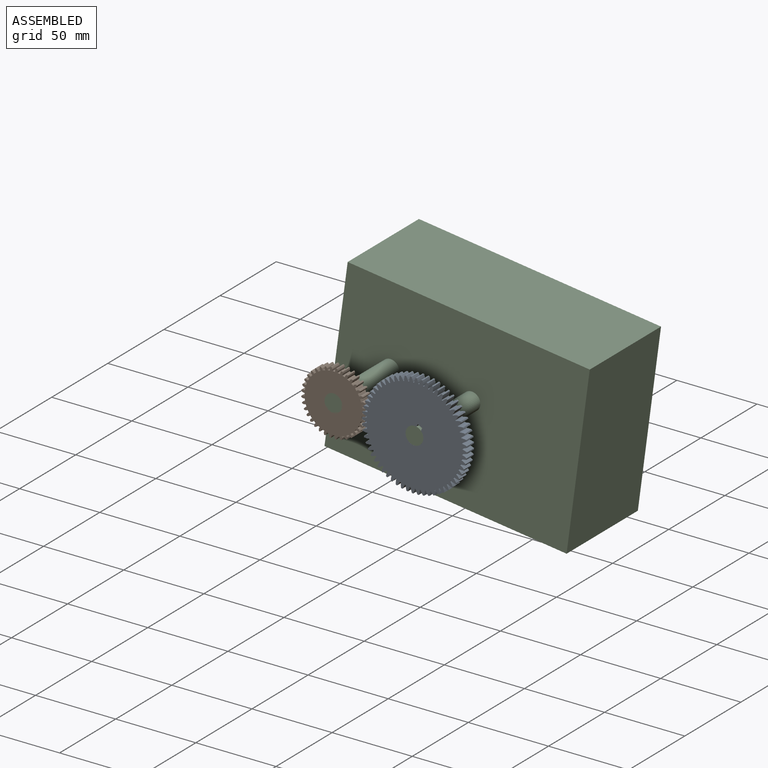
[diagram: assembled view]
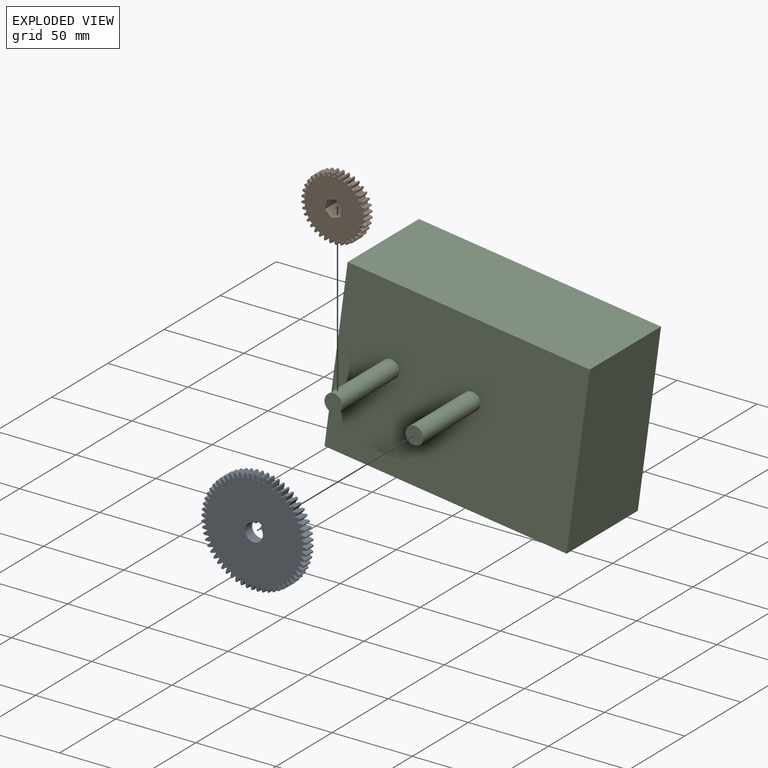
[diagram: exploded view]
GUIDED TOUR — MATED ASSEMBLY (Onshape document 88d157e55fa233e771fe9fb8, AutoMate assembly 88d157e55fa233e771fe9fb8_96536750882be23ef5b1c38d_1733c50d8d421fecbdc2144a_default)

This assembly has 3 components, labeled P0..P2 below (a component is one placed occurrence of a part; the same part can appear more than once), held together by 2 mates. A mate is a constraint between two components; its type names the relative motion it leaves free:
  REVOLUTE — leaves rotation about the listed axis free (a hinge).
Axis/direction vectors are unit vectors and 'through' points are millimeter coordinates, both in the assembly's world frame.

MATES
  1. REVOLUTE "Revolute 2": P2 <-> P0, axis (0.000, -1.000, 0.000) through (-80.83, -11.17, 45.76) mm
  2. REVOLUTE "Revolute 1": P1 <-> P2, axis (0.000, -1.000, 0.000) through (-131.41, -11.17, 50.53) mm

ASSEMBLY ORDER
  1. P2 — the base component [order verified]
  2. P1 [order verified]
  3. P0 [order verified]
Order-tag legend:
  [order verified] — this step's position reverses a verified removal order: the component was checked to insert without passing through the ones already placed.

Of the 3 components, 1 carries the full construction recipe — the FeatureScript program that regenerates the part's solid from scratch; the rest are supplied as boundary geometry only.
Each toured component is shown spotlighted twice — in the assembled view, then in the exploded view, where a leader line traces a displaced component back to its assembled socket (saturated green if recipe-attached, orange if geometry-only; every other component desaturated gray) — followed by its recipe or geometry summary and the mates that hold it.
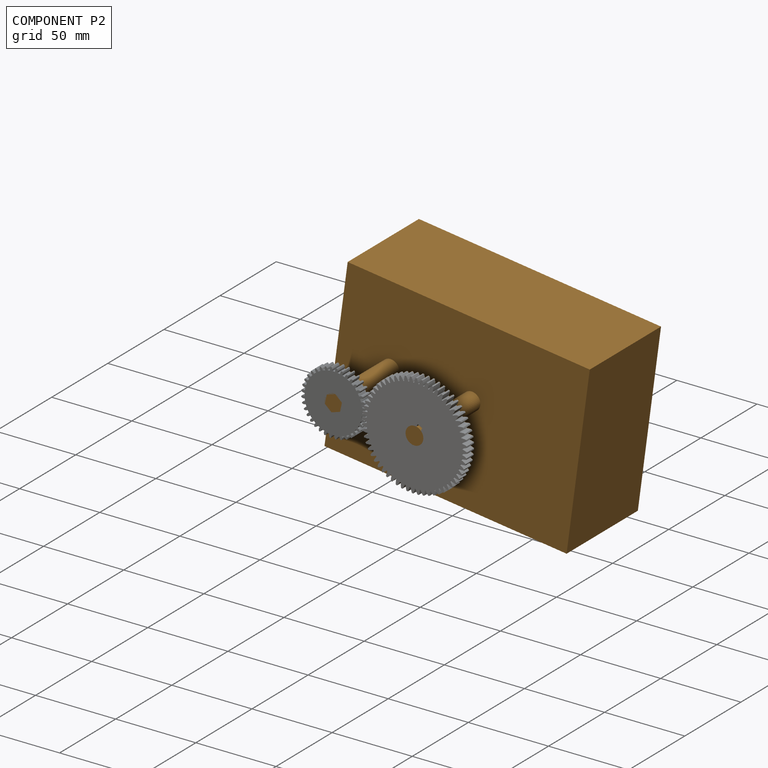
[diagram: component P2 — assembled]
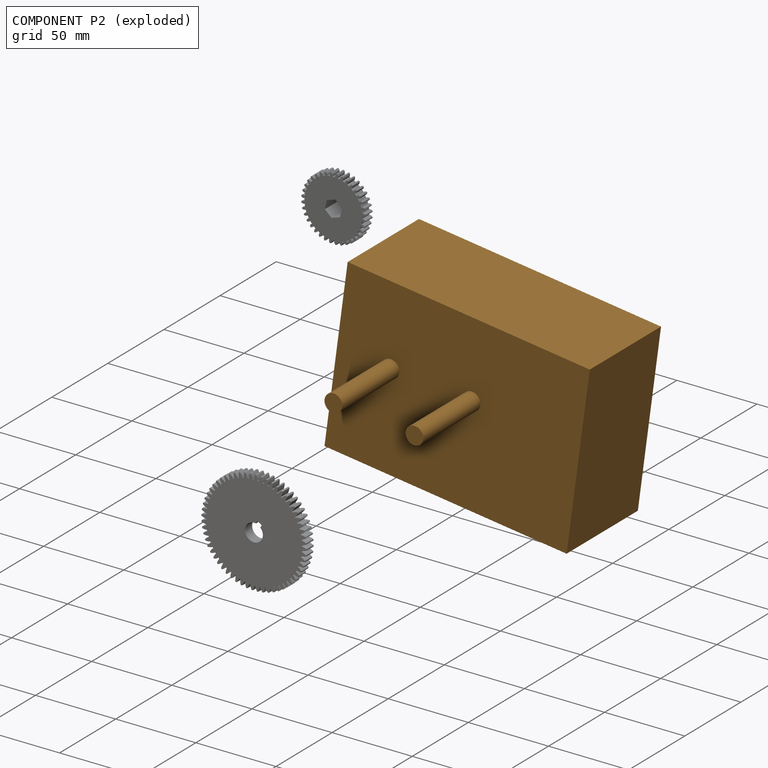
[diagram: component P2 — exploded]
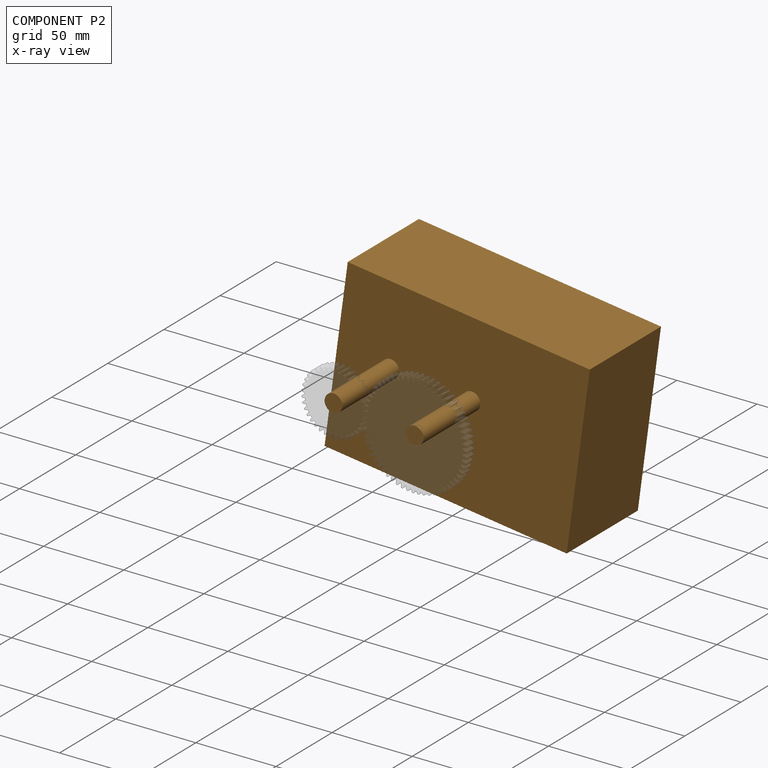
[diagram: component P2 — x-ray view]
COMPONENT P2 — geometry summary (no construction recipe available for this part):
  bounding box: 152.4 x 114.3 x 108.7 mm
  B-rep topology: 1 solid, 10 faces, 36 edges
  volume: 1061357 mm^3 (56% of its bounding box)
Held by: REVOLUTE mate "Revolute 2" to P0; REVOLUTE mate "Revolute 1" to P1.
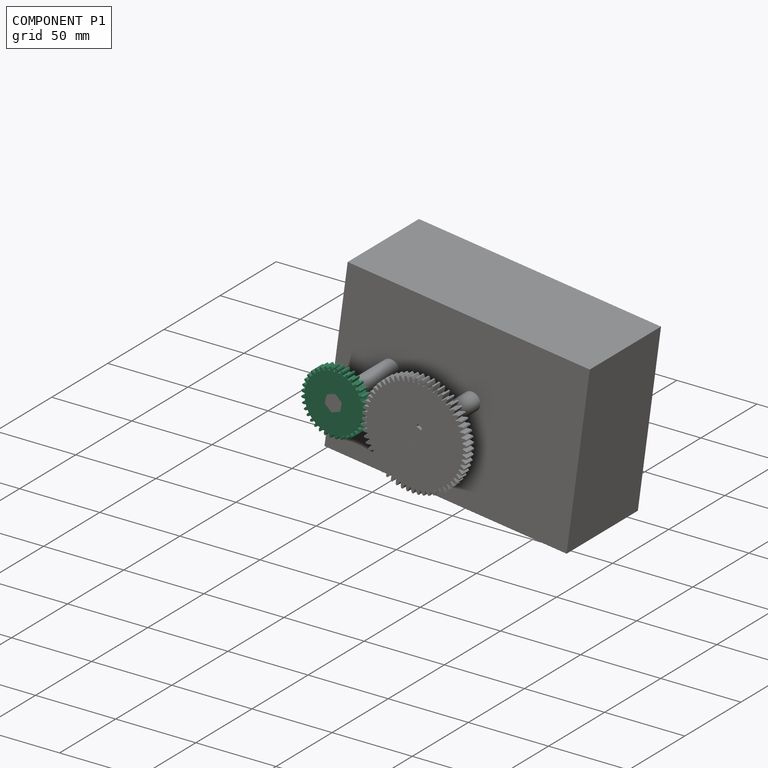
[diagram: component P1 — assembled]
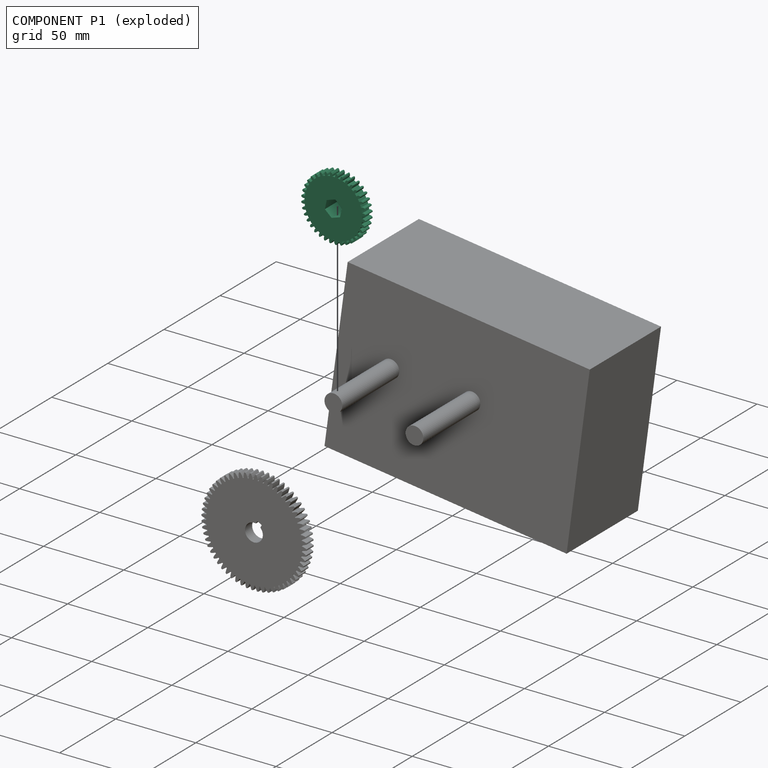
[diagram: component P1 — exploded]
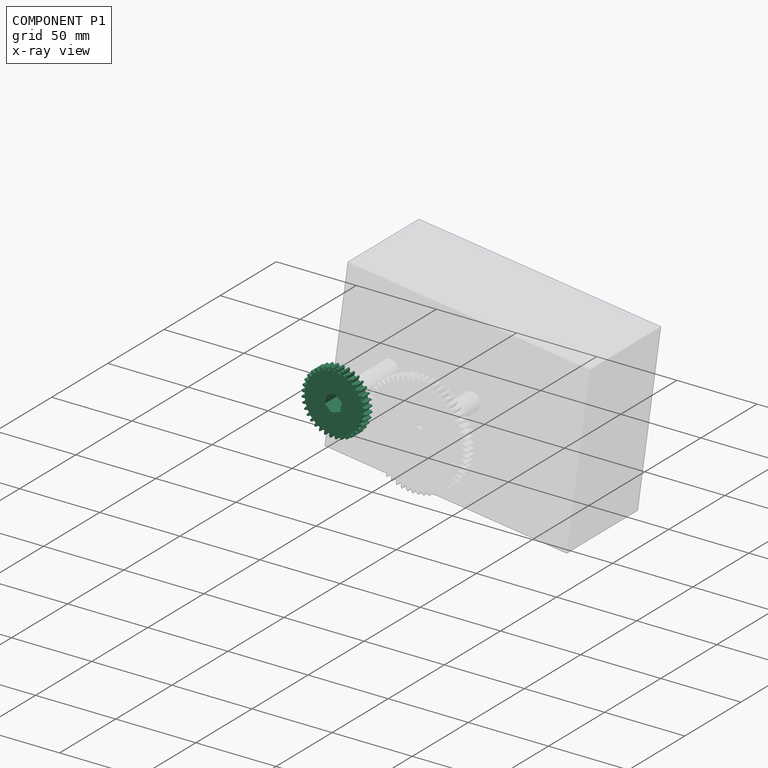
[diagram: component P1 — x-ray view]
COMPONENT P1 — recipe-attached (CADFS 00252082, mesh-verified: the recipe's output STEP matches this component's geometry to below the mesh-comparison resolution (tessellation chordal tolerance ~0.0877 mm)).
Held by: REVOLUTE mate "Revolute 1" to P2.
Construction recipe (FeatureScript — the CAD program that rebuilds this solid; sketch coordinates are in the units given by the * unit suffixes, e.g. mm):

FeatureScript 1511;
import(path : "onshape/std/geometry.fs", version : "1511.0");
import(path : "onshape/std/common.fs", version : "1511.0");
const mm = millimeter;
const VERTEX = EntityType.VERTEX;
const EDGE = EntityType.EDGE;
const FACE = EntityType.FACE;
const BODY = EntityType.BODY;
function v(x, y){return vector(x, y);}
function OD(order){return orderDisambiguation(order);}
function OSD(set){return originalSetDisambiguation(set);}
function TD(topology){return topologyDisambiguation(topology);}
function TDD(query){return trueDependencyDisambiguation(query);}
function sQuery(a, b, c) {return sketchEntityQuery(a, b, c);}

annotation { "Feature Type Name" : "Feature", "Feature Type Description" : "" }
export const myFeature = defineFeature(function(context is Context, id is Id, definition is map)
    precondition{}
    {
        {
            var Q0;
            Q0=qCreatedBy(makeId("Front.planeOp"),FACE);
            var sketch = newSketch(context, id + "F0", { "sketchPlane" : qUnion([Q0])});
            skArc(sketch, "E0", {"start": v(-0.56, 20.1) * mm, "mid": v(-0.72, 20.1) * mm, "end": v(-0.88, 20.08) * mm});
            skArc(sketch, "E1", {"start": v(-14.73, 10.31) * mm, "mid": v(-15.17, 9.66) * mm, "end": v(-15.57, 9) * mm});
            skLineSegment(sketch, "E2", {"start": v(0, 17.98) * mm, "end": v(0, 19.05) * mm});
            skArc(sketch, "E3.trimOffspring", {"start": v(0, 19.05) * mm, "mid": v(-0.25, 19.6) * mm, "end": v(-0.56, 20.1) * mm});
            skPoint(sketch, "E4.orphan", {"position": v(-2.13, 48.9) * mm});
            skPoint(sketch, "E5.orphan", {"position": v(-2.13, 24.4) * mm});
            skArc(sketch, "E6.MirrorCS", {"start": v(-1.2, 20.07) * mm, "mid": v(-1.03, 20.08) * mm, "end": v(-0.88, 20.08) * mm});
            skArc(sketch, "E7.MirrorCS", {"start": v(-1.66, 18.98) * mm, "mid": v(-1.46, 19.54) * mm, "end": v(-1.2, 20.07) * mm});
            skLineSegment(sketch, "E8.MirrorCS", {"start": v(-1.57, 17.91) * mm, "end": v(-1.66, 18.98) * mm});
            skLineSegment(sketch, "E9.1.0", {"start": v(-4.65, 17.37) * mm, "end": v(-4.93, 18.4) * mm});
            skLineSegment(sketch, "E9.1.1", {"start": v(-3.12, 17.7) * mm, "end": v(-3.3, 18.76) * mm});
            skArc(sketch, "E9.1.2", {"start": v(-4.93, 18.4) * mm, "mid": v(-4.83, 18.99) * mm, "end": v(-4.66, 19.56) * mm});
            skArc(sketch, "E9.1.3", {"start": v(-3.3, 18.76) * mm, "mid": v(-3.65, 19.25) * mm, "end": v(-4.04, 19.7) * mm});
            skArc(sketch, "E9.1.4", {"start": v(-4.04, 19.7) * mm, "mid": v(-4.2, 19.66) * mm, "end": v(-4.35, 19.63) * mm});
            skArc(sketch, "E9.1.5", {"start": v(-4.66, 19.56) * mm, "mid": v(-4.5, 19.6) * mm, "end": v(-4.35, 19.63) * mm});
            skLineSegment(sketch, "E9.2.0", {"start": v(-7.6, 16.3) * mm, "end": v(-8.05, 17.27) * mm});
            skLineSegment(sketch, "E9.2.1", {"start": v(-6.15, 16.9) * mm, "end": v(-6.52, 17.9) * mm});
            skArc(sketch, "E9.2.2", {"start": v(-8.05, 17.27) * mm, "mid": v(-8.05, 17.86) * mm, "end": v(-7.98, 18.45) * mm});
            skArc(sketch, "E9.2.3", {"start": v(-6.52, 17.9) * mm, "mid": v(-6.93, 18.32) * mm, "end": v(-7.4, 18.7) * mm});
            skArc(sketch, "E9.2.4", {"start": v(-7.4, 18.7) * mm, "mid": v(-7.55, 18.63) * mm, "end": v(-7.7, 18.57) * mm});
            skArc(sketch, "E9.2.5", {"start": v(-7.98, 18.45) * mm, "mid": v(-7.84, 18.51) * mm, "end": v(-7.7, 18.57) * mm});
            skLineSegment(sketch, "E9.3.0", {"start": v(-10.31, 14.73) * mm, "end": v(-10.93, 15.6) * mm});
            skLineSegment(sketch, "E9.3.1", {"start": v(-9, 15.57) * mm, "end": v(-9.52, 16.5) * mm});
            skArc(sketch, "E9.3.2", {"start": v(-10.93, 15.6) * mm, "mid": v(-11.03, 16.19) * mm, "end": v(-11.07, 16.78) * mm});
            skArc(sketch, "E9.3.3", {"start": v(-9.52, 16.5) * mm, "mid": v(-10, 16.84) * mm, "end": v(-10.53, 17.12) * mm});
            skArc(sketch, "E9.3.4", {"start": v(-10.53, 17.12) * mm, "mid": v(-10.67, 17.04) * mm, "end": v(-10.8, 16.96) * mm});
            skArc(sketch, "E9.3.5", {"start": v(-11.07, 16.78) * mm, "mid": v(-10.93, 16.87) * mm, "end": v(-10.8, 16.96) * mm});
            skLineSegment(sketch, "E9.4.0", {"start": v(-12.72, 12.72) * mm, "end": v(-13.47, 13.47) * mm});
            skLineSegment(sketch, "E9.4.1", {"start": v(-11.56, 13.78) * mm, "end": v(-12.25, 14.6) * mm});
            skArc(sketch, "E9.4.2", {"start": v(-13.47, 13.47) * mm, "mid": v(-13.68, 14.03) * mm, "end": v(-13.81, 14.6) * mm});
            skArc(sketch, "E9.4.3", {"start": v(-12.25, 14.6) * mm, "mid": v(-12.78, 14.85) * mm, "end": v(-13.35, 15.03) * mm});
            skArc(sketch, "E9.4.4", {"start": v(-13.35, 15.03) * mm, "mid": v(-13.47, 14.93) * mm, "end": v(-13.58, 14.82) * mm});
            skArc(sketch, "E9.4.5", {"start": v(-13.81, 14.6) * mm, "mid": v(-13.7, 14.72) * mm, "end": v(-13.58, 14.82) * mm});
            skLineSegment(sketch, "E9.5.0", {"start": v(-14.73, 10.31) * mm, "end": v(-15.6, 10.93) * mm});
            skLineSegment(sketch, "E9.5.1", {"start": v(-13.78, 11.56) * mm, "end": v(-14.6, 12.25) * mm});
            skArc(sketch, "E9.5.2", {"start": v(-15.6, 10.93) * mm, "mid": v(-15.9, 11.44) * mm, "end": v(-16.14, 11.99) * mm});
            skArc(sketch, "E9.5.3", {"start": v(-14.6, 12.25) * mm, "mid": v(-15.17, 12.4) * mm, "end": v(-15.76, 12.49) * mm});
            skArc(sketch, "E9.5.4", {"start": v(-15.76, 12.49) * mm, "mid": v(-15.85, 12.36) * mm, "end": v(-15.95, 12.24) * mm});
            skArc(sketch, "E9.5.5", {"start": v(-16.14, 11.99) * mm, "mid": v(-16.05, 12.11) * mm, "end": v(-15.95, 12.24) * mm});
            skLineSegment(sketch, "E9.6.0", {"start": v(-16.3, 7.6) * mm, "end": v(-17.27, 8.05) * mm});
            skLineSegment(sketch, "E9.6.1", {"start": v(-15.57, 9) * mm, "end": v(-16.5, 9.53) * mm});
            skArc(sketch, "E9.6.2", {"start": v(-17.27, 8.05) * mm, "mid": v(-17.65, 8.5) * mm, "end": v(-17.98, 9) * mm});
            skArc(sketch, "E9.6.3", {"start": v(-16.5, 9.53) * mm, "mid": v(-17.09, 9.58) * mm, "end": v(-17.68, 9.56) * mm});
            skArc(sketch, "E9.6.4", {"start": v(-17.68, 9.56) * mm, "mid": v(-17.76, 9.42) * mm, "end": v(-17.83, 9.28) * mm});
            skArc(sketch, "E9.6.5", {"start": v(-17.98, 9) * mm, "mid": v(-17.9, 9.14) * mm, "end": v(-17.83, 9.28) * mm});
            skLineSegment(sketch, "E9.7.0", {"start": v(-17.37, 4.65) * mm, "end": v(-18.4, 4.93) * mm});
            skLineSegment(sketch, "E9.7.1", {"start": v(-16.9, 6.15) * mm, "end": v(-17.9, 6.52) * mm});
            skArc(sketch, "E9.7.2", {"start": v(-18.4, 4.93) * mm, "mid": v(-18.86, 5.3) * mm, "end": v(-19.27, 5.74) * mm});
            skArc(sketch, "E9.7.3", {"start": v(-17.9, 6.52) * mm, "mid": v(-18.5, 6.47) * mm, "end": v(-19.08, 6.35) * mm});
            skArc(sketch, "E9.7.4", {"start": v(-19.08, 6.35) * mm, "mid": v(-19.13, 6.2) * mm, "end": v(-19.17, 6.05) * mm});
            skArc(sketch, "E9.7.5", {"start": v(-19.27, 5.74) * mm, "mid": v(-19.22, 5.9) * mm, "end": v(-19.17, 6.05) * mm});
            skLineSegment(sketch, "E9.8.0", {"start": v(-17.91, 1.57) * mm, "end": v(-18.98, 1.66) * mm});
            skLineSegment(sketch, "E9.8.1", {"start": v(-17.7, 3.12) * mm, "end": v(-18.76, 3.3) * mm});
            skArc(sketch, "E9.8.2", {"start": v(-18.98, 1.66) * mm, "mid": v(-19.5, 1.95) * mm, "end": v(-19.97, 2.31) * mm});
            skArc(sketch, "E9.8.3", {"start": v(-18.76, 3.3) * mm, "mid": v(-19.34, 3.16) * mm, "end": v(-19.89, 2.94) * mm});
            skArc(sketch, "E9.8.4", {"start": v(-19.89, 2.94) * mm, "mid": v(-19.91, 2.78) * mm, "end": v(-19.93, 2.62) * mm});
            skArc(sketch, "E9.8.5", {"start": v(-19.97, 2.31) * mm, "mid": v(-19.95, 2.47) * mm, "end": v(-19.93, 2.62) * mm});
            skLineSegment(sketch, "E9.9.0", {"start": v(-17.91, -1.57) * mm, "end": v(-18.98, -1.66) * mm});
            skLineSegment(sketch, "E9.9.1", {"start": v(-17.98, 0) * mm, "end": v(-19.05, 0) * mm});
            skArc(sketch, "E9.9.2", {"start": v(-18.98, -1.66) * mm, "mid": v(-19.54, -1.46) * mm, "end": v(-20.07, -1.2) * mm});
            skArc(sketch, "E9.9.3", {"start": v(-19.05, 0) * mm, "mid": v(-19.6, -0.25) * mm, "end": v(-20.1, -0.56) * mm});
            skArc(sketch, "E9.9.4", {"start": v(-20.1, -0.56) * mm, "mid": v(-20.1, -0.72) * mm, "end": v(-20.08, -0.88) * mm});
            skArc(sketch, "E9.9.5", {"start": v(-20.07, -1.2) * mm, "mid": v(-20.08, -1.03) * mm, "end": v(-20.08, -0.88) * mm});
            skLineSegment(sketch, "E9.10.0", {"start": v(-17.37, -4.65) * mm, "end": v(-18.4, -4.93) * mm});
            skLineSegment(sketch, "E9.10.1", {"start": v(-17.7, -3.12) * mm, "end": v(-18.76, -3.3) * mm});
            skArc(sketch, "E9.10.2", {"start": v(-18.4, -4.93) * mm, "mid": v(-18.99, -4.83) * mm, "end": v(-19.56, -4.66) * mm});
            skArc(sketch, "E9.10.3", {"start": v(-18.76, -3.3) * mm, "mid": v(-19.25, -3.65) * mm, "end": v(-19.7, -4.04) * mm});
            skArc(sketch, "E9.10.4", {"start": v(-19.7, -4.04) * mm, "mid": v(-19.66, -4.2) * mm, "end": v(-19.63, -4.35) * mm});
            skArc(sketch, "E9.10.5", {"start": v(-19.56, -4.66) * mm, "mid": v(-19.6, -4.5) * mm, "end": v(-19.63, -4.35) * mm});
            skLineSegment(sketch, "E9.11.0", {"start": v(-16.3, -7.6) * mm, "end": v(-17.27, -8.05) * mm});
            skLineSegment(sketch, "E9.11.1", {"start": v(-16.9, -6.15) * mm, "end": v(-17.9, -6.52) * mm});
            skArc(sketch, "E9.11.2", {"start": v(-17.27, -8.05) * mm, "mid": v(-17.86, -8.05) * mm, "end": v(-18.45, -7.98) * mm});
            skArc(sketch, "E9.11.3", {"start": v(-17.9, -6.52) * mm, "mid": v(-18.32, -6.93) * mm, "end": v(-18.7, -7.4) * mm});
            skArc(sketch, "E9.11.4", {"start": v(-18.7, -7.4) * mm, "mid": v(-18.63, -7.55) * mm, "end": v(-18.57, -7.7) * mm});
            skArc(sketch, "E9.11.5", {"start": v(-18.45, -7.98) * mm, "mid": v(-18.51, -7.84) * mm, "end": v(-18.57, -7.7) * mm});
            skLineSegment(sketch, "E9.12.0", {"start": v(-14.73, -10.31) * mm, "end": v(-15.6, -10.93) * mm});
            skLineSegment(sketch, "E9.12.1", {"start": v(-15.57, -9) * mm, "end": v(-16.5, -9.52) * mm});
            skArc(sketch, "E9.12.2", {"start": v(-15.6, -10.93) * mm, "mid": v(-16.19, -11.03) * mm, "end": v(-16.78, -11.07) * mm});
            skArc(sketch, "E9.12.3", {"start": v(-16.5, -9.52) * mm, "mid": v(-16.84, -10) * mm, "end": v(-17.12, -10.53) * mm});
            skArc(sketch, "E9.12.4", {"start": v(-17.12, -10.53) * mm, "mid": v(-17.04, -10.67) * mm, "end": v(-16.96, -10.8) * mm});
            skArc(sketch, "E9.12.5", {"start": v(-16.78, -11.07) * mm, "mid": v(-16.87, -10.93) * mm, "end": v(-16.96, -10.8) * mm});
            skLineSegment(sketch, "E9.13.0", {"start": v(-12.72, -12.72) * mm, "end": v(-13.47, -13.47) * mm});
            skLineSegment(sketch, "E9.13.1", {"start": v(-13.78, -11.56) * mm, "end": v(-14.6, -12.25) * mm});
            skArc(sketch, "E9.13.2", {"start": v(-13.47, -13.47) * mm, "mid": v(-14.03, -13.68) * mm, "end": v(-14.6, -13.81) * mm});
            skArc(sketch, "E9.13.3", {"start": v(-14.6, -12.25) * mm, "mid": v(-14.85, -12.78) * mm, "end": v(-15.03, -13.35) * mm});
            skArc(sketch, "E9.13.4", {"start": v(-15.03, -13.35) * mm, "mid": v(-14.93, -13.47) * mm, "end": v(-14.82, -13.58) * mm});
            skArc(sketch, "E9.13.5", {"start": v(-14.6, -13.81) * mm, "mid": v(-14.72, -13.7) * mm, "end": v(-14.82, -13.58) * mm});
            skLineSegment(sketch, "E9.14.0", {"start": v(-10.31, -14.73) * mm, "end": v(-10.93, -15.6) * mm});
            skLineSegment(sketch, "E9.14.1", {"start": v(-11.56, -13.78) * mm, "end": v(-12.25, -14.6) * mm});
            skArc(sketch, "E9.14.2", {"start": v(-10.93, -15.6) * mm, "mid": v(-11.44, -15.9) * mm, "end": v(-11.99, -16.14) * mm});
            skArc(sketch, "E9.14.3", {"start": v(-12.25, -14.6) * mm, "mid": v(-12.4, -15.17) * mm, "end": v(-12.49, -15.76) * mm});
            skArc(sketch, "E9.14.4", {"start": v(-12.49, -15.76) * mm, "mid": v(-12.36, -15.85) * mm, "end": v(-12.24, -15.95) * mm});
            skArc(sketch, "E9.14.5", {"start": v(-11.99, -16.14) * mm, "mid": v(-12.11, -16.05) * mm, "end": v(-12.24, -15.95) * mm});
            skLineSegment(sketch, "E9.15.0", {"start": v(-7.6, -16.3) * mm, "end": v(-8.05, -17.27) * mm});
            skLineSegment(sketch, "E9.15.1", {"start": v(-9, -15.57) * mm, "end": v(-9.53, -16.5) * mm});
            skArc(sketch, "E9.15.2", {"start": v(-8.05, -17.27) * mm, "mid": v(-8.5, -17.65) * mm, "end": v(-9, -17.98) * mm});
            skArc(sketch, "E9.15.3", {"start": v(-9.53, -16.5) * mm, "mid": v(-9.58, -17.09) * mm, "end": v(-9.56, -17.68) * mm});
            skArc(sketch, "E9.15.4", {"start": v(-9.56, -17.68) * mm, "mid": v(-9.42, -17.76) * mm, "end": v(-9.28, -17.83) * mm});
            skArc(sketch, "E9.15.5", {"start": v(-9, -17.98) * mm, "mid": v(-9.14, -17.9) * mm, "end": v(-9.28, -17.83) * mm});
            skLineSegment(sketch, "E9.16.0", {"start": v(-4.65, -17.37) * mm, "end": v(-4.93, -18.4) * mm});
            skLineSegment(sketch, "E9.16.1", {"start": v(-6.15, -16.9) * mm, "end": v(-6.52, -17.9) * mm});
            skArc(sketch, "E9.16.2", {"start": v(-4.93, -18.4) * mm, "mid": v(-5.3, -18.86) * mm, "end": v(-5.74, -19.27) * mm});
            skArc(sketch, "E9.16.3", {"start": v(-6.52, -17.9) * mm, "mid": v(-6.47, -18.5) * mm, "end": v(-6.35, -19.08) * mm});
            skArc(sketch, "E9.16.4", {"start": v(-6.35, -19.08) * mm, "mid": v(-6.2, -19.13) * mm, "end": v(-6.05, -19.17) * mm});
            skArc(sketch, "E9.16.5", {"start": v(-5.74, -19.27) * mm, "mid": v(-5.9, -19.22) * mm, "end": v(-6.05, -19.17) * mm});
            skLineSegment(sketch, "E9.17.0", {"start": v(-1.57, -17.91) * mm, "end": v(-1.66, -18.98) * mm});
            skLineSegment(sketch, "E9.17.1", {"start": v(-3.12, -17.7) * mm, "end": v(-3.3, -18.76) * mm});
            skArc(sketch, "E9.17.2", {"start": v(-1.66, -18.98) * mm, "mid": v(-1.95, -19.5) * mm, "end": v(-2.31, -19.97) * mm});
            skArc(sketch, "E9.17.3", {"start": v(-3.3, -18.76) * mm, "mid": v(-3.16, -19.34) * mm, "end": v(-2.94, -19.89) * mm});
            skArc(sketch, "E9.17.4", {"start": v(-2.94, -19.89) * mm, "mid": v(-2.78, -19.91) * mm, "end": v(-2.62, -19.93) * mm});
            skArc(sketch, "E9.17.5", {"start": v(-2.31, -19.97) * mm, "mid": v(-2.47, -19.95) * mm, "end": v(-2.62, -19.93) * mm});
            skLineSegment(sketch, "E9.18.0", {"start": v(1.57, -17.91) * mm, "end": v(1.66, -18.98) * mm});
            skLineSegment(sketch, "E9.18.1", {"start": v(0, -17.98) * mm, "end": v(0, -19.05) * mm});
            skArc(sketch, "E9.18.2", {"start": v(1.66, -18.98) * mm, "mid": v(1.46, -19.54) * mm, "end": v(1.2, -20.07) * mm});
            skArc(sketch, "E9.18.3", {"start": v(0, -19.05) * mm, "mid": v(0.25, -19.6) * mm, "end": v(0.56, -20.1) * mm});
            skArc(sketch, "E9.18.4", {"start": v(0.56, -20.1) * mm, "mid": v(0.72, -20.1) * mm, "end": v(0.88, -20.08) * mm});
            skArc(sketch, "E9.18.5", {"start": v(1.2, -20.07) * mm, "mid": v(1.03, -20.08) * mm, "end": v(0.88, -20.08) * mm});
            skLineSegment(sketch, "E9.19.0", {"start": v(4.65, -17.37) * mm, "end": v(4.93, -18.4) * mm});
            skLineSegment(sketch, "E9.19.1", {"start": v(3.12, -17.7) * mm, "end": v(3.3, -18.76) * mm});
            skArc(sketch, "E9.19.2", {"start": v(4.93, -18.4) * mm, "mid": v(4.83, -18.99) * mm, "end": v(4.66, -19.56) * mm});
            skArc(sketch, "E9.19.3", {"start": v(3.3, -18.76) * mm, "mid": v(3.65, -19.25) * mm, "end": v(4.04, -19.7) * mm});
            skArc(sketch, "E9.19.4", {"start": v(4.04, -19.7) * mm, "mid": v(4.2, -19.66) * mm, "end": v(4.35, -19.63) * mm});
            skArc(sketch, "E9.19.5", {"start": v(4.66, -19.56) * mm, "mid": v(4.5, -19.6) * mm, "end": v(4.35, -19.63) * mm});
            skLineSegment(sketch, "E9.20.0", {"start": v(7.6, -16.3) * mm, "end": v(8.05, -17.27) * mm});
            skLineSegment(sketch, "E9.20.1", {"start": v(6.15, -16.9) * mm, "end": v(6.52, -17.9) * mm});
            skArc(sketch, "E9.20.2", {"start": v(8.05, -17.27) * mm, "mid": v(8.05, -17.86) * mm, "end": v(7.98, -18.45) * mm});
            skArc(sketch, "E9.20.3", {"start": v(6.52, -17.9) * mm, "mid": v(6.93, -18.32) * mm, "end": v(7.4, -18.7) * mm});
            skArc(sketch, "E9.20.4", {"start": v(7.4, -18.7) * mm, "mid": v(7.55, -18.63) * mm, "end": v(7.7, -18.57) * mm});
            skArc(sketch, "E9.20.5", {"start": v(7.98, -18.45) * mm, "mid": v(7.84, -18.51) * mm, "end": v(7.7, -18.57) * mm});
            skLineSegment(sketch, "E9.21.0", {"start": v(10.31, -14.73) * mm, "end": v(10.93, -15.6) * mm});
            skLineSegment(sketch, "E9.21.1", {"start": v(9, -15.57) * mm, "end": v(9.53, -16.5) * mm});
            skArc(sketch, "E9.21.2", {"start": v(10.93, -15.6) * mm, "mid": v(11.03, -16.19) * mm, "end": v(11.07, -16.78) * mm});
            skArc(sketch, "E9.21.3", {"start": v(9.53, -16.5) * mm, "mid": v(10, -16.84) * mm, "end": v(10.53, -17.12) * mm});
            skArc(sketch, "E9.21.4", {"start": v(10.53, -17.12) * mm, "mid": v(10.67, -17.04) * mm, "end": v(10.8, -16.96) * mm});
            skArc(sketch, "E9.21.5", {"start": v(11.07, -16.78) * mm, "mid": v(10.93, -16.87) * mm, "end": v(10.8, -16.96) * mm});
            skLineSegment(sketch, "E9.22.0", {"start": v(12.72, -12.72) * mm, "end": v(13.47, -13.47) * mm});
            skLineSegment(sketch, "E9.22.1", {"start": v(11.56, -13.78) * mm, "end": v(12.25, -14.6) * mm});
            skArc(sketch, "E9.22.2", {"start": v(13.47, -13.47) * mm, "mid": v(13.68, -14.03) * mm, "end": v(13.81, -14.6) * mm});
            skArc(sketch, "E9.22.3", {"start": v(12.25, -14.6) * mm, "mid": v(12.78, -14.85) * mm, "end": v(13.35, -15.03) * mm});
            skArc(sketch, "E9.22.4", {"start": v(13.35, -15.03) * mm, "mid": v(13.47, -14.93) * mm, "end": v(13.58, -14.82) * mm});
            skArc(sketch, "E9.22.5", {"start": v(13.81, -14.6) * mm, "mid": v(13.7, -14.72) * mm, "end": v(13.58, -14.82) * mm});
            skLineSegment(sketch, "E9.23.0", {"start": v(14.73, -10.31) * mm, "end": v(15.6, -10.93) * mm});
            skLineSegment(sketch, "E9.23.1", {"start": v(13.78, -11.56) * mm, "end": v(14.6, -12.25) * mm});
            skArc(sketch, "E9.23.2", {"start": v(15.6, -10.93) * mm, "mid": v(15.9, -11.44) * mm, "end": v(16.14, -11.99) * mm});
            skArc(sketch, "E9.23.3", {"start": v(14.6, -12.25) * mm, "mid": v(15.17, -12.4) * mm, "end": v(15.76, -12.49) * mm});
            skArc(sketch, "E9.23.4", {"start": v(15.76, -12.49) * mm, "mid": v(15.85, -12.36) * mm, "end": v(15.95, -12.24) * mm});
            skArc(sketch, "E9.23.5", {"start": v(16.14, -11.99) * mm, "mid": v(16.05, -12.11) * mm, "end": v(15.95, -12.24) * mm});
            skLineSegment(sketch, "E9.24.0", {"start": v(16.3, -7.6) * mm, "end": v(17.27, -8.05) * mm});
            skLineSegment(sketch, "E9.24.1", {"start": v(15.57, -9) * mm, "end": v(16.5, -9.53) * mm});
            skArc(sketch, "E9.24.2", {"start": v(17.27, -8.05) * mm, "mid": v(17.65, -8.5) * mm, "end": v(17.98, -9) * mm});
            skArc(sketch, "E9.24.3", {"start": v(16.5, -9.53) * mm, "mid": v(17.09, -9.58) * mm, "end": v(17.68, -9.56) * mm});
            skArc(sketch, "E9.24.4", {"start": v(17.68, -9.56) * mm, "mid": v(17.76, -9.42) * mm, "end": v(17.83, -9.28) * mm});
            skArc(sketch, "E9.24.5", {"start": v(17.98, -9) * mm, "mid": v(17.9, -9.14) * mm, "end": v(17.83, -9.28) * mm});
            skLineSegment(sketch, "E9.25.0", {"start": v(17.37, -4.65) * mm, "end": v(18.4, -4.93) * mm});
            skLineSegment(sketch, "E9.25.1", {"start": v(16.9, -6.15) * mm, "end": v(17.9, -6.52) * mm});
            skArc(sketch, "E9.25.2", {"start": v(18.4, -4.93) * mm, "mid": v(18.86, -5.3) * mm, "end": v(19.27, -5.74) * mm});
            skArc(sketch, "E9.25.3", {"start": v(17.9, -6.52) * mm, "mid": v(18.5, -6.47) * mm, "end": v(19.08, -6.35) * mm});
            skArc(sketch, "E9.25.4", {"start": v(19.08, -6.35) * mm, "mid": v(19.13, -6.2) * mm, "end": v(19.17, -6.05) * mm});
            skArc(sketch, "E9.25.5", {"start": v(19.27, -5.74) * mm, "mid": v(19.22, -5.9) * mm, "end": v(19.17, -6.05) * mm});
            skLineSegment(sketch, "E9.26.0", {"start": v(17.91, -1.57) * mm, "end": v(18.98, -1.66) * mm});
            skLineSegment(sketch, "E9.26.1", {"start": v(17.7, -3.12) * mm, "end": v(18.76, -3.3) * mm});
            skArc(sketch, "E9.26.2", {"start": v(18.98, -1.66) * mm, "mid": v(19.5, -1.95) * mm, "end": v(19.97, -2.31) * mm});
            skArc(sketch, "E9.26.3", {"start": v(18.76, -3.3) * mm, "mid": v(19.34, -3.16) * mm, "end": v(19.89, -2.94) * mm});
            skArc(sketch, "E9.26.4", {"start": v(19.89, -2.94) * mm, "mid": v(19.91, -2.78) * mm, "end": v(19.93, -2.62) * mm});
            skArc(sketch, "E9.26.5", {"start": v(19.97, -2.31) * mm, "mid": v(19.95, -2.47) * mm, "end": v(19.93, -2.62) * mm});
            skLineSegment(sketch, "E9.27.0", {"start": v(17.91, 1.57) * mm, "end": v(18.98, 1.66) * mm});
            skLineSegment(sketch, "E9.27.1", {"start": v(17.98, 0) * mm, "end": v(19.05, 0) * mm});
            skArc(sketch, "E9.27.2", {"start": v(18.98, 1.66) * mm, "mid": v(19.54, 1.46) * mm, "end": v(20.07, 1.2) * mm});
            skArc(sketch, "E9.27.3", {"start": v(19.05, 0) * mm, "mid": v(19.6, 0.25) * mm, "end": v(20.1, 0.56) * mm});
            skArc(sketch, "E9.27.4", {"start": v(20.1, 0.56) * mm, "mid": v(20.1, 0.72) * mm, "end": v(20.08, 0.88) * mm});
            skArc(sketch, "E9.27.5", {"start": v(20.07, 1.2) * mm, "mid": v(20.08, 1.03) * mm, "end": v(20.08, 0.88) * mm});
            skLineSegment(sketch, "E9.28.0", {"start": v(17.37, 4.65) * mm, "end": v(18.4, 4.93) * mm});
            skLineSegment(sketch, "E9.28.1", {"start": v(17.7, 3.12) * mm, "end": v(18.76, 3.3) * mm});
            skArc(sketch, "E9.28.2", {"start": v(18.4, 4.93) * mm, "mid": v(18.99, 4.83) * mm, "end": v(19.56, 4.66) * mm});
            skArc(sketch, "E9.28.3", {"start": v(18.76, 3.3) * mm, "mid": v(19.25, 3.65) * mm, "end": v(19.7, 4.04) * mm});
            skArc(sketch, "E9.28.4", {"start": v(19.7, 4.04) * mm, "mid": v(19.66, 4.2) * mm, "end": v(19.63, 4.35) * mm});
            skArc(sketch, "E9.28.5", {"start": v(19.56, 4.66) * mm, "mid": v(19.6, 4.5) * mm, "end": v(19.63, 4.35) * mm});
            skLineSegment(sketch, "E9.29.0", {"start": v(16.3, 7.6) * mm, "end": v(17.27, 8.05) * mm});
            skLineSegment(sketch, "E9.29.1", {"start": v(16.9, 6.15) * mm, "end": v(17.9, 6.52) * mm});
            skArc(sketch, "E9.29.2", {"start": v(17.27, 8.05) * mm, "mid": v(17.86, 8.05) * mm, "end": v(18.45, 7.98) * mm});
            skArc(sketch, "E9.29.3", {"start": v(17.9, 6.52) * mm, "mid": v(18.32, 6.93) * mm, "end": v(18.7, 7.4) * mm});
            skArc(sketch, "E9.29.4", {"start": v(18.7, 7.4) * mm, "mid": v(18.63, 7.55) * mm, "end": v(18.57, 7.7) * mm});
            skArc(sketch, "E9.29.5", {"start": v(18.45, 7.98) * mm, "mid": v(18.51, 7.84) * mm, "end": v(18.57, 7.7) * mm});
            skLineSegment(sketch, "E9.30.0", {"start": v(14.73, 10.31) * mm, "end": v(15.6, 10.93) * mm});
            skLineSegment(sketch, "E9.30.1", {"start": v(15.57, 9) * mm, "end": v(16.5, 9.52) * mm});
            skArc(sketch, "E9.30.2", {"start": v(15.6, 10.93) * mm, "mid": v(16.19, 11.03) * mm, "end": v(16.78, 11.07) * mm});
            skArc(sketch, "E9.30.3", {"start": v(16.5, 9.52) * mm, "mid": v(16.84, 10) * mm, "end": v(17.12, 10.53) * mm});
            skArc(sketch, "E9.30.4", {"start": v(17.12, 10.53) * mm, "mid": v(17.04, 10.67) * mm, "end": v(16.96, 10.8) * mm});
            skArc(sketch, "E9.30.5", {"start": v(16.78, 11.07) * mm, "mid": v(16.87, 10.93) * mm, "end": v(16.96, 10.8) * mm});
            skLineSegment(sketch, "E9.31.0", {"start": v(12.72, 12.72) * mm, "end": v(13.47, 13.47) * mm});
            skLineSegment(sketch, "E9.31.1", {"start": v(13.78, 11.56) * mm, "end": v(14.6, 12.25) * mm});
            skArc(sketch, "E9.31.2", {"start": v(13.47, 13.47) * mm, "mid": v(14.03, 13.68) * mm, "end": v(14.6, 13.81) * mm});
            skArc(sketch, "E9.31.3", {"start": v(14.6, 12.25) * mm, "mid": v(14.85, 12.78) * mm, "end": v(15.03, 13.35) * mm});
            skArc(sketch, "E9.31.4", {"start": v(15.03, 13.35) * mm, "mid": v(14.93, 13.47) * mm, "end": v(14.82, 13.58) * mm});
            skArc(sketch, "E9.31.5", {"start": v(14.6, 13.81) * mm, "mid": v(14.72, 13.7) * mm, "end": v(14.82, 13.58) * mm});
            skLineSegment(sketch, "E9.32.0", {"start": v(10.31, 14.73) * mm, "end": v(10.93, 15.6) * mm});
            skLineSegment(sketch, "E9.32.1", {"start": v(11.56, 13.78) * mm, "end": v(12.25, 14.6) * mm});
            skArc(sketch, "E9.32.2", {"start": v(10.93, 15.6) * mm, "mid": v(11.44, 15.9) * mm, "end": v(11.99, 16.14) * mm});
            skArc(sketch, "E9.32.3", {"start": v(12.25, 14.6) * mm, "mid": v(12.4, 15.17) * mm, "end": v(12.49, 15.76) * mm});
            skArc(sketch, "E9.32.4", {"start": v(12.49, 15.76) * mm, "mid": v(12.36, 15.85) * mm, "end": v(12.24, 15.95) * mm});
            skArc(sketch, "E9.32.5", {"start": v(11.99, 16.14) * mm, "mid": v(12.11, 16.05) * mm, "end": v(12.24, 15.95) * mm});
            skLineSegment(sketch, "E9.33.0", {"start": v(7.6, 16.3) * mm, "end": v(8.05, 17.27) * mm});
            skLineSegment(sketch, "E9.33.1", {"start": v(9, 15.57) * mm, "end": v(9.52, 16.5) * mm});
            skArc(sketch, "E9.33.2", {"start": v(8.05, 17.27) * mm, "mid": v(8.5, 17.65) * mm, "end": v(9, 17.98) * mm});
            skArc(sketch, "E9.33.3", {"start": v(9.52, 16.5) * mm, "mid": v(9.58, 17.09) * mm, "end": v(9.56, 17.68) * mm});
            skArc(sketch, "E9.33.4", {"start": v(9.56, 17.68) * mm, "mid": v(9.42, 17.76) * mm, "end": v(9.28, 17.83) * mm});
            skArc(sketch, "E9.33.5", {"start": v(9, 17.98) * mm, "mid": v(9.14, 17.9) * mm, "end": v(9.28, 17.83) * mm});
            skLineSegment(sketch, "E9.34.0", {"start": v(4.65, 17.37) * mm, "end": v(4.93, 18.4) * mm});
            skLineSegment(sketch, "E9.34.1", {"start": v(6.15, 16.9) * mm, "end": v(6.52, 17.9) * mm});
            skArc(sketch, "E9.34.2", {"start": v(4.93, 18.4) * mm, "mid": v(5.3, 18.86) * mm, "end": v(5.74, 19.27) * mm});
            skArc(sketch, "E9.34.3", {"start": v(6.52, 17.9) * mm, "mid": v(6.47, 18.5) * mm, "end": v(6.35, 19.08) * mm});
            skArc(sketch, "E9.34.4", {"start": v(6.35, 19.08) * mm, "mid": v(6.2, 19.13) * mm, "end": v(6.05, 19.17) * mm});
            skArc(sketch, "E9.34.5", {"start": v(5.74, 19.27) * mm, "mid": v(5.9, 19.22) * mm, "end": v(6.05, 19.17) * mm});
            skLineSegment(sketch, "E9.35.0", {"start": v(1.57, 17.91) * mm, "end": v(1.66, 18.98) * mm});
            skLineSegment(sketch, "E9.35.1", {"start": v(3.12, 17.7) * mm, "end": v(3.3, 18.76) * mm});
            skArc(sketch, "E9.35.2", {"start": v(1.66, 18.98) * mm, "mid": v(1.95, 19.5) * mm, "end": v(2.31, 19.97) * mm});
            skArc(sketch, "E9.35.3", {"start": v(3.3, 18.76) * mm, "mid": v(3.16, 19.34) * mm, "end": v(2.94, 19.89) * mm});
            skArc(sketch, "E9.35.4", {"start": v(2.94, 19.89) * mm, "mid": v(2.78, 19.91) * mm, "end": v(2.62, 19.93) * mm});
            skArc(sketch, "E9.35.5", {"start": v(2.31, 19.97) * mm, "mid": v(2.47, 19.95) * mm, "end": v(2.62, 19.93) * mm});
            skArc(sketch, "E10.trimOffspring", {"start": v(-12.72, 12.72) * mm, "mid": v(-13.26, 12.15) * mm, "end": v(-13.78, 11.56) * mm});
            skArc(sketch, "E11.trimOffspring", {"start": v(-10.31, 14.73) * mm, "mid": v(-10.95, 14.27) * mm, "end": v(-11.56, 13.78) * mm});
            skArc(sketch, "E12.trimOffspring", {"start": v(-7.6, 16.3) * mm, "mid": v(-8.3, 15.95) * mm, "end": v(-9, 15.57) * mm});
            skArc(sketch, "E13.trimOffspring", {"start": v(-4.65, 17.37) * mm, "mid": v(-5.4, 17.15) * mm, "end": v(-6.15, 16.9) * mm});
            skArc(sketch, "E14.trimOffspring", {"start": v(-1.57, 17.91) * mm, "mid": v(-2.35, 17.83) * mm, "end": v(-3.12, 17.7) * mm});
            skArc(sketch, "E15.trimOffspring", {"start": v(1.57, 17.91) * mm, "mid": v(0.78, 17.97) * mm, "end": v(0, 17.98) * mm});
            skArc(sketch, "E16.trimOffspring", {"start": v(4.65, 17.37) * mm, "mid": v(3.9, 17.56) * mm, "end": v(3.12, 17.7) * mm});
            skArc(sketch, "E17.trimOffspring", {"start": v(7.6, 16.3) * mm, "mid": v(6.88, 16.61) * mm, "end": v(6.15, 16.9) * mm});
            skArc(sketch, "E18.trimOffspring", {"start": v(10.31, 14.73) * mm, "mid": v(9.66, 15.17) * mm, "end": v(9, 15.57) * mm});
            skArc(sketch, "E19.trimOffspring", {"start": v(12.72, 12.72) * mm, "mid": v(12.15, 13.26) * mm, "end": v(11.56, 13.78) * mm});
            skArc(sketch, "E20.trimOffspring", {"start": v(14.73, 10.31) * mm, "mid": v(14.27, 10.95) * mm, "end": v(13.78, 11.56) * mm});
            skArc(sketch, "E21.trimOffspring", {"start": v(16.3, 7.6) * mm, "mid": v(15.95, 8.3) * mm, "end": v(15.57, 9) * mm});
            skArc(sketch, "E22.trimOffspring", {"start": v(17.37, 4.65) * mm, "mid": v(17.15, 5.4) * mm, "end": v(16.9, 6.15) * mm});
            skArc(sketch, "E23.trimOffspring", {"start": v(17.91, 1.57) * mm, "mid": v(17.83, 2.35) * mm, "end": v(17.7, 3.12) * mm});
            skArc(sketch, "E24.trimOffspring", {"start": v(17.91, -1.57) * mm, "mid": v(17.97, -0.78) * mm, "end": v(17.98, 0) * mm});
            skArc(sketch, "E25.trimOffspring", {"start": v(17.37, -4.65) * mm, "mid": v(17.56, -3.9) * mm, "end": v(17.7, -3.12) * mm});
            skArc(sketch, "E26.trimOffspring", {"start": v(16.3, -7.6) * mm, "mid": v(16.61, -6.88) * mm, "end": v(16.9, -6.15) * mm});
            skArc(sketch, "E27.trimOffspring", {"start": v(14.73, -10.31) * mm, "mid": v(15.17, -9.66) * mm, "end": v(15.57, -9) * mm});
            skArc(sketch, "E28.trimOffspring", {"start": v(12.72, -12.72) * mm, "mid": v(13.26, -12.15) * mm, "end": v(13.78, -11.56) * mm});
            skArc(sketch, "E29.trimOffspring", {"start": v(10.31, -14.73) * mm, "mid": v(10.95, -14.27) * mm, "end": v(11.56, -13.78) * mm});
            skArc(sketch, "E30.trimOffspring", {"start": v(7.6, -16.3) * mm, "mid": v(8.3, -15.95) * mm, "end": v(9, -15.57) * mm});
            skArc(sketch, "E31.trimOffspring", {"start": v(4.65, -17.37) * mm, "mid": v(5.4, -17.15) * mm, "end": v(6.15, -16.9) * mm});
            skArc(sketch, "E32.trimOffspring", {"start": v(1.57, -17.91) * mm, "mid": v(2.35, -17.83) * mm, "end": v(3.12, -17.7) * mm});
            skArc(sketch, "E33.trimOffspring", {"start": v(-1.57, -17.91) * mm, "mid": v(-0.78, -17.97) * mm, "end": v(0, -17.98) * mm});
            skArc(sketch, "E34.trimOffspring", {"start": v(-4.65, -17.37) * mm, "mid": v(-3.9, -17.56) * mm, "end": v(-3.12, -17.7) * mm});
            skArc(sketch, "E35.trimOffspring", {"start": v(-7.6, -16.3) * mm, "mid": v(-6.88, -16.61) * mm, "end": v(-6.15, -16.9) * mm});
            skArc(sketch, "E36.trimOffspring", {"start": v(-10.31, -14.73) * mm, "mid": v(-9.66, -15.17) * mm, "end": v(-9, -15.57) * mm});
            skArc(sketch, "E37.trimOffspring", {"start": v(-12.72, -12.72) * mm, "mid": v(-12.15, -13.26) * mm, "end": v(-11.56, -13.78) * mm});
            skArc(sketch, "E38.trimOffspring", {"start": v(-14.73, -10.31) * mm, "mid": v(-14.27, -10.95) * mm, "end": v(-13.78, -11.56) * mm});
            skArc(sketch, "E39.trimOffspring", {"start": v(-16.3, -7.6) * mm, "mid": v(-15.95, -8.3) * mm, "end": v(-15.57, -9) * mm});
            skArc(sketch, "E40.trimOffspring", {"start": v(-17.37, -4.65) * mm, "mid": v(-17.15, -5.4) * mm, "end": v(-16.9, -6.15) * mm});
            skArc(sketch, "E41.trimOffspring", {"start": v(-17.91, -1.57) * mm, "mid": v(-17.83, -2.35) * mm, "end": v(-17.7, -3.12) * mm});
            skArc(sketch, "E42.trimOffspring", {"start": v(-17.91, 1.57) * mm, "mid": v(-17.97, 0.78) * mm, "end": v(-17.98, 0) * mm});
            skArc(sketch, "E43.trimOffspring", {"start": v(-17.37, 4.65) * mm, "mid": v(-17.56, 3.9) * mm, "end": v(-17.7, 3.12) * mm});
            skArc(sketch, "E44.trimOffspring", {"start": v(-16.3, 7.6) * mm, "mid": v(-16.61, 6.88) * mm, "end": v(-16.9, 6.15) * mm});
            skSolve(sketch);
        }
        {
            var Q0;
            Q0=makeQuery(id+"F0.imprint","IMPRINT",FACE,{"disambiguationData":[TD([[makeQuery(id+"F0.imprint","IMPRINT",EDGE,{"derivedFrom":sQuery(id+"F0.wireOp",EDGE,"E0")}),1.0]])]});
            extrude(context, id + "F1", {"entities" : qUnion([Q0]), "depth" : 6.35 * mm});
        }
        {
            var Q0;
            Q0=makeQuery(id+"F1.opExtrude","CAP_FACE",FACE,{"disambiguationData":[OSD([sQuery(id+"F0.wireOp",EDGE,"E0"),sQuery(id+"F0.wireOp",EDGE,"E1"),sQuery(id+"F0.wireOp",EDGE,"E2"),sQuery(id+"F0.wireOp",EDGE,"E3.trimOffspring"),sQuery(id+"F0.wireOp",EDGE,"E6.MirrorCS"),sQuery(id+"F0.wireOp",EDGE,"E7.MirrorCS"),sQuery(id+"F0.wireOp",EDGE,"E8.MirrorCS"),sQuery(id+"F0.wireOp",EDGE,"E9.1.0"),sQuery(id+"F0.wireOp",EDGE,"E9.1.1"),sQuery(id+"F0.wireOp",EDGE,"E9.1.2"),sQuery(id+"F0.wireOp",EDGE,"E9.1.3"),sQuery(id+"F0.wireOp",EDGE,"E9.1.4"),sQuery(id+"F0.wireOp",EDGE,"E9.1.5"),sQuery(id+"F0.wireOp",EDGE,"E9.2.0"),sQuery(id+"F0.wireOp",EDGE,"E9.2.1"),sQuery(id+"F0.wireOp",EDGE,"E9.2.2"),sQuery(id+"F0.wireOp",EDGE,"E9.2.3"),sQuery(id+"F0.wireOp",EDGE,"E9.2.4"),sQuery(id+"F0.wireOp",EDGE,"E9.2.5"),sQuery(id+"F0.wireOp",EDGE,"E9.3.0"),sQuery(id+"F0.wireOp",EDGE,"E9.3.1"),sQuery(id+"F0.wireOp",EDGE,"E9.3.2"),sQuery(id+"F0.wireOp",EDGE,"E9.3.3"),sQuery(id+"F0.wireOp",EDGE,"E9.3.4"),sQuery(id+"F0.wireOp",EDGE,"E9.3.5"),sQuery(id+"F0.wireOp",EDGE,"E9.4.0"),sQuery(id+"F0.wireOp",EDGE,"E9.4.1"),sQuery(id+"F0.wireOp",EDGE,"E9.4.2"),sQuery(id+"F0.wireOp",EDGE,"E9.4.3"),sQuery(id+"F0.wireOp",EDGE,"E9.4.4"),sQuery(id+"F0.wireOp",EDGE,"E9.4.5"),sQuery(id+"F0.wireOp",EDGE,"E9.5.0"),sQuery(id+"F0.wireOp",EDGE,"E9.5.1"),sQuery(id+"F0.wireOp",EDGE,"E9.5.2"),sQuery(id+"F0.wireOp",EDGE,"E9.5.3"),sQuery(id+"F0.wireOp",EDGE,"E9.5.4"),sQuery(id+"F0.wireOp",EDGE,"E9.5.5"),sQuery(id+"F0.wireOp",EDGE,"E9.6.0"),sQuery(id+"F0.wireOp",EDGE,"E9.6.1"),sQuery(id+"F0.wireOp",EDGE,"E9.6.2"),sQuery(id+"F0.wireOp",EDGE,"E9.6.3"),sQuery(id+"F0.wireOp",EDGE,"E9.6.4"),sQuery(id+"F0.wireOp",EDGE,"E9.6.5"),sQuery(id+"F0.wireOp",EDGE,"E9.7.0"),sQuery(id+"F0.wireOp",EDGE,"E9.7.1"),sQuery(id+"F0.wireOp",EDGE,"E9.7.2"),sQuery(id+"F0.wireOp",EDGE,"E9.7.3"),sQuery(id+"F0.wireOp",EDGE,"E9.7.4"),sQuery(id+"F0.wireOp",EDGE,"E9.7.5"),sQuery(id+"F0.wireOp",EDGE,"E9.8.0"),sQuery(id+"F0.wireOp",EDGE,"E9.8.1"),sQuery(id+"F0.wireOp",EDGE,"E9.8.2"),sQuery(id+"F0.wireOp",EDGE,"E9.8.3"),sQuery(id+"F0.wireOp",EDGE,"E9.8.4"),sQuery(id+"F0.wireOp",EDGE,"E9.8.5"),sQuery(id+"F0.wireOp",EDGE,"E9.9.0"),sQuery(id+"F0.wireOp",EDGE,"E9.9.1"),sQuery(id+"F0.wireOp",EDGE,"E9.9.2"),sQuery(id+"F0.wireOp",EDGE,"E9.9.3"),sQuery(id+"F0.wireOp",EDGE,"E9.9.4"),sQuery(id+"F0.wireOp",EDGE,"E9.9.5"),sQuery(id+"F0.wireOp",EDGE,"E9.10.0"),sQuery(id+"F0.wireOp",EDGE,"E9.10.1"),sQuery(id+"F0.wireOp",EDGE,"E9.10.2"),sQuery(id+"F0.wireOp",EDGE,"E9.10.3"),sQuery(id+"F0.wireOp",EDGE,"E9.10.4"),sQuery(id+"F0.wireOp",EDGE,"E9.10.5"),sQuery(id+"F0.wireOp",EDGE,"E9.11.0"),sQuery(id+"F0.wireOp",EDGE,"E9.11.1"),sQuery(id+"F0.wireOp",EDGE,"E9.11.2"),sQuery(id+"F0.wireOp",EDGE,"E9.11.3"),sQuery(id+"F0.wireOp",EDGE,"E9.11.4"),sQuery(id+"F0.wireOp",EDGE,"E9.11.5"),sQuery(id+"F0.wireOp",EDGE,"E9.12.0"),sQuery(id+"F0.wireOp",EDGE,"E9.12.1"),sQuery(id+"F0.wireOp",EDGE,"E9.12.2"),sQuery(id+"F0.wireOp",EDGE,"E9.12.3"),sQuery(id+"F0.wireOp",EDGE,"E9.12.4"),sQuery(id+"F0.wireOp",EDGE,"E9.12.5"),sQuery(id+"F0.wireOp",EDGE,"E9.13.0"),sQuery(id+"F0.wireOp",EDGE,"E9.13.1"),sQuery(id+"F0.wireOp",EDGE,"E9.13.2"),sQuery(id+"F0.wireOp",EDGE,"E9.13.3"),sQuery(id+"F0.wireOp",EDGE,"E9.13.4"),sQuery(id+"F0.wireOp",EDGE,"E9.13.5"),sQuery(id+"F0.wireOp",EDGE,"E9.14.0"),sQuery(id+"F0.wireOp",EDGE,"E9.14.1"),sQuery(id+"F0.wireOp",EDGE,"E9.14.2"),sQuery(id+"F0.wireOp",EDGE,"E9.14.3"),sQuery(id+"F0.wireOp",EDGE,"E9.14.4"),sQuery(id+"F0.wireOp",EDGE,"E9.14.5"),sQuery(id+"F0.wireOp",EDGE,"E9.15.0"),sQuery(id+"F0.wireOp",EDGE,"E9.15.1"),sQuery(id+"F0.wireOp",EDGE,"E9.15.2"),sQuery(id+"F0.wireOp",EDGE,"E9.15.3"),sQuery(id+"F0.wireOp",EDGE,"E9.15.4"),sQuery(id+"F0.wireOp",EDGE,"E9.15.5"),sQuery(id+"F0.wireOp",EDGE,"E9.16.0"),sQuery(id+"F0.wireOp",EDGE,"E9.16.1"),sQuery(id+"F0.wireOp",EDGE,"E9.16.2"),sQuery(id+"F0.wireOp",EDGE,"E9.16.3"),sQuery(id+"F0.wireOp",EDGE,"E9.16.4"),sQuery(id+"F0.wireOp",EDGE,"E9.16.5"),sQuery(id+"F0.wireOp",EDGE,"E9.17.0"),sQuery(id+"F0.wireOp",EDGE,"E9.17.1"),sQuery(id+"F0.wireOp",EDGE,"E9.17.2"),sQuery(id+"F0.wireOp",EDGE,"E9.17.3"),sQuery(id+"F0.wireOp",EDGE,"E9.17.4"),sQuery(id+"F0.wireOp",EDGE,"E9.17.5"),sQuery(id+"F0.wireOp",EDGE,"E9.18.0"),sQuery(id+"F0.wireOp",EDGE,"E9.18.1"),sQuery(id+"F0.wireOp",EDGE,"E9.18.2"),sQuery(id+"F0.wireOp",EDGE,"E9.18.3"),sQuery(id+"F0.wireOp",EDGE,"E9.18.4"),sQuery(id+"F0.wireOp",EDGE,"E9.18.5"),sQuery(id+"F0.wireOp",EDGE,"E9.19.0"),sQuery(id+"F0.wireOp",EDGE,"E9.19.1"),sQuery(id+"F0.wireOp",EDGE,"E9.19.2"),sQuery(id+"F0.wireOp",EDGE,"E9.19.3"),sQuery(id+"F0.wireOp",EDGE,"E9.19.4"),sQuery(id+"F0.wireOp",EDGE,"E9.19.5"),sQuery(id+"F0.wireOp",EDGE,"E9.20.0"),sQuery(id+"F0.wireOp",EDGE,"E9.20.1"),sQuery(id+"F0.wireOp",EDGE,"E9.20.2"),sQuery(id+"F0.wireOp",EDGE,"E9.20.3"),sQuery(id+"F0.wireOp",EDGE,"E9.20.4"),sQuery(id+"F0.wireOp",EDGE,"E9.20.5"),sQuery(id+"F0.wireOp",EDGE,"E9.21.0"),sQuery(id+"F0.wireOp",EDGE,"E9.21.1"),sQuery(id+"F0.wireOp",EDGE,"E9.21.2"),sQuery(id+"F0.wireOp",EDGE,"E9.21.3"),sQuery(id+"F0.wireOp",EDGE,"E9.21.4"),sQuery(id+"F0.wireOp",EDGE,"E9.21.5"),sQuery(id+"F0.wireOp",EDGE,"E9.22.0"),sQuery(id+"F0.wireOp",EDGE,"E9.22.1"),sQuery(id+"F0.wireOp",EDGE,"E9.22.2"),sQuery(id+"F0.wireOp",EDGE,"E9.22.3"),sQuery(id+"F0.wireOp",EDGE,"E9.22.4"),sQuery(id+"F0.wireOp",EDGE,"E9.22.5"),sQuery(id+"F0.wireOp",EDGE,"E9.23.0"),sQuery(id+"F0.wireOp",EDGE,"E9.23.1"),sQuery(id+"F0.wireOp",EDGE,"E9.23.2"),sQuery(id+"F0.wireOp",EDGE,"E9.23.3"),sQuery(id+"F0.wireOp",EDGE,"E9.23.4"),sQuery(id+"F0.wireOp",EDGE,"E9.23.5"),sQuery(id+"F0.wireOp",EDGE,"E9.24.0"),sQuery(id+"F0.wireOp",EDGE,"E9.24.1"),sQuery(id+"F0.wireOp",EDGE,"E9.24.2"),sQuery(id+"F0.wireOp",EDGE,"E9.24.3"),sQuery(id+"F0.wireOp",EDGE,"E9.24.4"),sQuery(id+"F0.wireOp",EDGE,"E9.24.5"),sQuery(id+"F0.wireOp",EDGE,"E9.25.0"),sQuery(id+"F0.wireOp",EDGE,"E9.25.1"),sQuery(id+"F0.wireOp",EDGE,"E9.25.2"),sQuery(id+"F0.wireOp",EDGE,"E9.25.3"),sQuery(id+"F0.wireOp",EDGE,"E9.25.4"),sQuery(id+"F0.wireOp",EDGE,"E9.25.5"),sQuery(id+"F0.wireOp",EDGE,"E9.26.0"),sQuery(id+"F0.wireOp",EDGE,"E9.26.1"),sQuery(id+"F0.wireOp",EDGE,"E9.26.2"),sQuery(id+"F0.wireOp",EDGE,"E9.26.3"),sQuery(id+"F0.wireOp",EDGE,"E9.26.4"),sQuery(id+"F0.wireOp",EDGE,"E9.26.5"),sQuery(id+"F0.wireOp",EDGE,"E9.27.0"),sQuery(id+"F0.wireOp",EDGE,"E9.27.1"),sQuery(id+"F0.wireOp",EDGE,"E9.27.2"),sQuery(id+"F0.wireOp",EDGE,"E9.27.3"),sQuery(id+"F0.wireOp",EDGE,"E9.27.4"),sQuery(id+"F0.wireOp",EDGE,"E9.27.5"),sQuery(id+"F0.wireOp",EDGE,"E9.28.0"),sQuery(id+"F0.wireOp",EDGE,"E9.28.1"),sQuery(id+"F0.wireOp",EDGE,"E9.28.2"),sQuery(id+"F0.wireOp",EDGE,"E9.28.3"),sQuery(id+"F0.wireOp",EDGE,"E9.28.4"),sQuery(id+"F0.wireOp",EDGE,"E9.28.5"),sQuery(id+"F0.wireOp",EDGE,"E9.29.0"),sQuery(id+"F0.wireOp",EDGE,"E9.29.1"),sQuery(id+"F0.wireOp",EDGE,"E9.29.2"),sQuery(id+"F0.wireOp",EDGE,"E9.29.3"),sQuery(id+"F0.wireOp",EDGE,"E9.29.4"),sQuery(id+"F0.wireOp",EDGE,"E9.29.5"),sQuery(id+"F0.wireOp",EDGE,"E9.30.0"),sQuery(id+"F0.wireOp",EDGE,"E9.30.1"),sQuery(id+"F0.wireOp",EDGE,"E9.30.2"),sQuery(id+"F0.wireOp",EDGE,"E9.30.3"),sQuery(id+"F0.wireOp",EDGE,"E9.30.4"),sQuery(id+"F0.wireOp",EDGE,"E9.30.5"),sQuery(id+"F0.wireOp",EDGE,"E9.31.0"),sQuery(id+"F0.wireOp",EDGE,"E9.31.1"),sQuery(id+"F0.wireOp",EDGE,"E9.31.2"),sQuery(id+"F0.wireOp",EDGE,"E9.31.3"),sQuery(id+"F0.wireOp",EDGE,"E9.31.4"),sQuery(id+"F0.wireOp",EDGE,"E9.31.5"),sQuery(id+"F0.wireOp",EDGE,"E9.32.0"),sQuery(id+"F0.wireOp",EDGE,"E9.32.1"),sQuery(id+"F0.wireOp",EDGE,"E9.32.2"),sQuery(id+"F0.wireOp",EDGE,"E9.32.3"),sQuery(id+"F0.wireOp",EDGE,"E9.32.4"),sQuery(id+"F0.wireOp",EDGE,"E9.32.5"),sQuery(id+"F0.wireOp",EDGE,"E9.33.0"),sQuery(id+"F0.wireOp",EDGE,"E9.33.1"),sQuery(id+"F0.wireOp",EDGE,"E9.33.2"),sQuery(id+"F0.wireOp",EDGE,"E9.33.3"),sQuery(id+"F0.wireOp",EDGE,"E9.33.4"),sQuery(id+"F0.wireOp",EDGE,"E9.33.5"),sQuery(id+"F0.wireOp",EDGE,"E9.34.0"),sQuery(id+"F0.wireOp",EDGE,"E9.34.1"),sQuery(id+"F0.wireOp",EDGE,"E9.34.2"),sQuery(id+"F0.wireOp",EDGE,"E9.34.3"),sQuery(id+"F0.wireOp",EDGE,"E9.34.4"),sQuery(id+"F0.wireOp",EDGE,"E9.34.5"),sQuery(id+"F0.wireOp",EDGE,"E9.35.0"),sQuery(id+"F0.wireOp",EDGE,"E9.35.1"),sQuery(id+"F0.wireOp",EDGE,"E9.35.2"),sQuery(id+"F0.wireOp",EDGE,"E9.35.3"),sQuery(id+"F0.wireOp",EDGE,"E9.35.4"),sQuery(id+"F0.wireOp",EDGE,"E9.35.5"),sQuery(id+"F0.wireOp",EDGE,"E10.trimOffspring"),sQuery(id+"F0.wireOp",EDGE,"E11.trimOffspring"),sQuery(id+"F0.wireOp",EDGE,"E12.trimOffspring"),sQuery(id+"F0.wireOp",EDGE,"E13.trimOffspring"),sQuery(id+"F0.wireOp",EDGE,"E14.trimOffspring"),sQuery(id+"F0.wireOp",EDGE,"E15.trimOffspring"),sQuery(id+"F0.wireOp",EDGE,"E16.trimOffspring"),sQuery(id+"F0.wireOp",EDGE,"E17.trimOffspring"),sQuery(id+"F0.wireOp",EDGE,"E18.trimOffspring"),sQuery(id+"F0.wireOp",EDGE,"E19.trimOffspring"),sQuery(id+"F0.wireOp",EDGE,"E20.trimOffspring"),sQuery(id+"F0.wireOp",EDGE,"E21.trimOffspring"),sQuery(id+"F0.wireOp",EDGE,"E22.trimOffspring"),sQuery(id+"F0.wireOp",EDGE,"E23.trimOffspring"),sQuery(id+"F0.wireOp",EDGE,"E24.trimOffspring"),sQuery(id+"F0.wireOp",EDGE,"E25.trimOffspring"),sQuery(id+"F0.wireOp",EDGE,"E26.trimOffspring"),sQuery(id+"F0.wireOp",EDGE,"E27.trimOffspring"),sQuery(id+"F0.wireOp",EDGE,"E28.trimOffspring"),sQuery(id+"F0.wireOp",EDGE,"E29.trimOffspring"),sQuery(id+"F0.wireOp",EDGE,"E30.trimOffspring"),sQuery(id+"F0.wireOp",EDGE,"E31.trimOffspring"),sQuery(id+"F0.wireOp",EDGE,"E32.trimOffspring"),sQuery(id+"F0.wireOp",EDGE,"E33.trimOffspring"),sQuery(id+"F0.wireOp",EDGE,"E34.trimOffspring"),sQuery(id+"F0.wireOp",EDGE,"E35.trimOffspring"),sQuery(id+"F0.wireOp",EDGE,"E36.trimOffspring"),sQuery(id+"F0.wireOp",EDGE,"E37.trimOffspring"),sQuery(id+"F0.wireOp",EDGE,"E38.trimOffspring"),sQuery(id+"F0.wireOp",EDGE,"E39.trimOffspring"),sQuery(id+"F0.wireOp",EDGE,"E40.trimOffspring"),sQuery(id+"F0.wireOp",EDGE,"E41.trimOffspring"),sQuery(id+"F0.wireOp",EDGE,"E42.trimOffspring"),sQuery(id+"F0.wireOp",EDGE,"E43.trimOffspring"),sQuery(id+"F0.wireOp",EDGE,"E44.trimOffspring")])],"isStart":false});
            var sketch = newSketch(context, id + "F2", { "sketchPlane" : qUnion([Q0])});
            skCircle(sketch, "E45", {"center": v(0, 0) * mm, "radius": 11.43 * mm});
            skSolve(sketch);
        }
        {
            var Q0;
            Q0=makeQuery(id+"F2.imprint","IMPRINT",FACE,{"disambiguationData":[TD([[makeQuery(id+"F2.imprint","IMPRINT",EDGE,{"derivedFrom":sQuery(id+"F2.wireOp",EDGE,"E45")}),1.0]])]});
            extrude(context, id + "F3", {"entities" : qUnion([Q0]), "operationType" : NewBodyOperationType.ADD, "depth" : 7.37 * mm});
        }
        {
            var Q0;
            Q0=makeQuery(id+"F3.opExtrude","CAP_FACE",FACE,{"disambiguationData":[OSD([sQuery(id+"F2.wireOp",EDGE,"E45")])],"isStart":false});
            var sketch = newSketch(context, id + "F4", { "sketchPlane" : qUnion([Q0])});
            skPoint(sketch, "E46.0.midPoint", {"position": v(1.2, 0.57) * mm});
            skCircle(sketch, "E47.cCircle", {"center": v(0, 0) * mm, "radius": 5.59 * mm, "construction": true});
            skLineSegment(sketch, "E47.0", {"start": v(2.87, 4.8) * mm, "end": v(5.59, -0.1) * mm});
            skLineSegment(sketch, "E47.1", {"start": v(5.59, -0.1) * mm, "end": v(2.71, -4.89) * mm});
            skLineSegment(sketch, "E47.2", {"start": v(2.71, -4.89) * mm, "end": v(-2.87, -4.8) * mm});
            skLineSegment(sketch, "E47.3", {"start": v(-2.87, -4.8) * mm, "end": v(-5.59, 0.1) * mm});
            skLineSegment(sketch, "E47.4", {"start": v(-5.59, 0.1) * mm, "end": v(-2.71, 4.89) * mm});
            skLineSegment(sketch, "E47.5", {"start": v(-2.71, 4.89) * mm, "end": v(2.87, 4.8) * mm});
            skSolve(sketch);
        }
        {
            var Q0;
            Q0=makeQuery(id+"F4.imprint","IMPRINT",FACE,{"disambiguationData":[TD([[makeQuery(id+"F4.imprint","IMPRINT",EDGE,{"derivedFrom":sQuery(id+"F4.wireOp",EDGE,"E47.0")}),-1.0]])]});
            extrude(context, id + "F5", {"entities" : qUnion([Q0]), "operationType" : NewBodyOperationType.REMOVE, "oppositeDirection" : true, "depth" : 130.8 * mm});
        }
    });
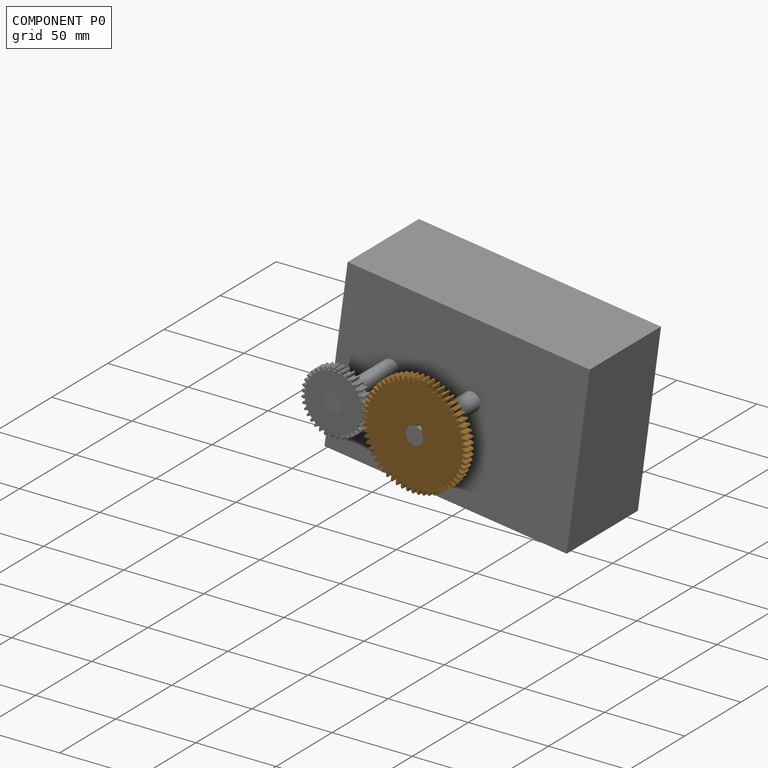
[diagram: component P0 — assembled]
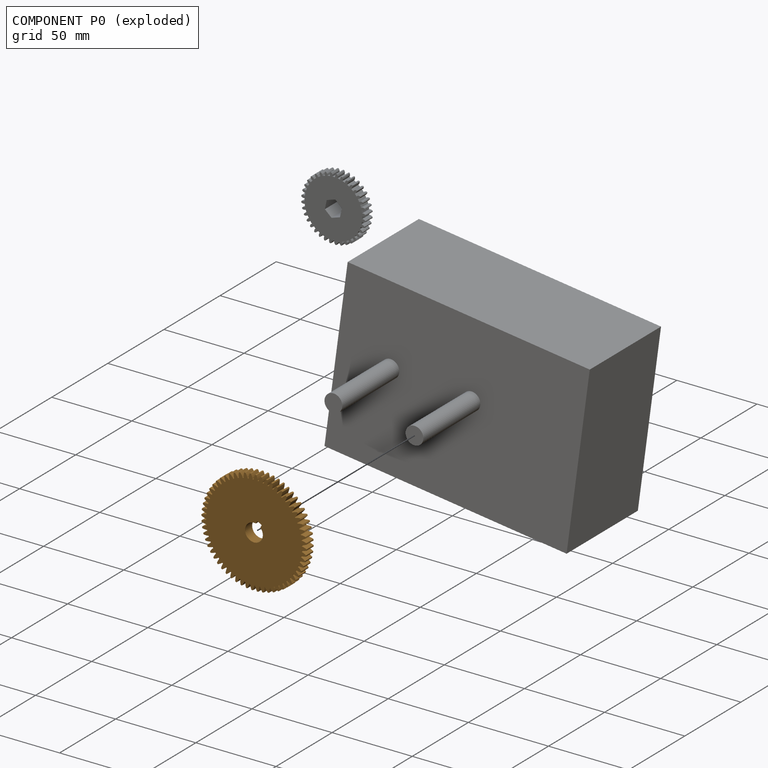
[diagram: component P0 — exploded]
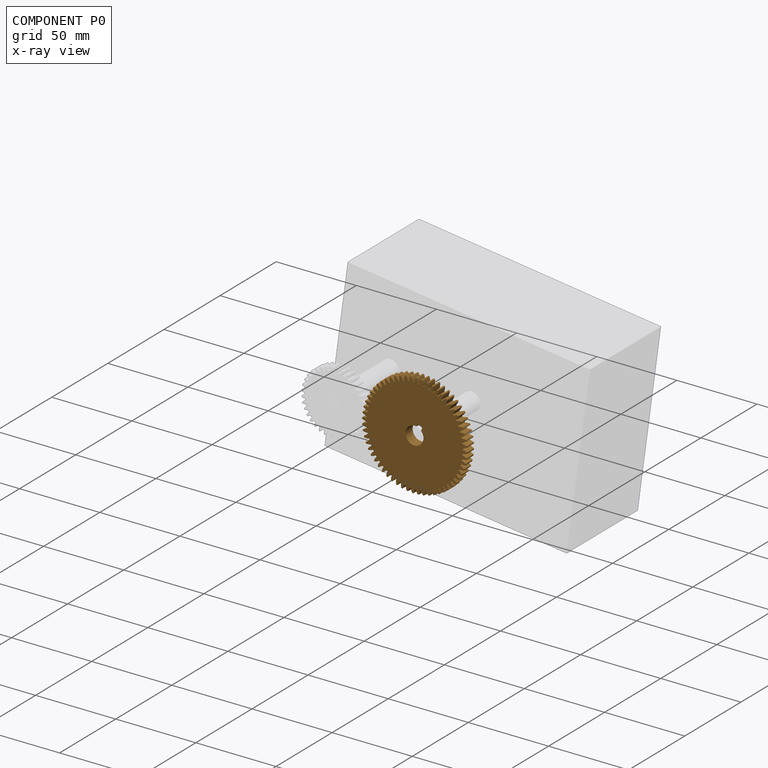
[diagram: component P0 — x-ray view]
COMPONENT P0 — geometry summary (no construction recipe available for this part):
  bounding box: 65.6 x 65.6 x 6.4 mm
  B-rep topology: 1 solid, 366 faces, 2184 edges
  volume: 19198 mm^3 (70% of its bounding box)
  symmetry: 2-fold rotationally symmetric about the z axis; mirror-symmetric across its x mid-plane, y mid-plane
Held by: REVOLUTE mate "Revolute 2" to P2.
PROVENANCE & LICENSES
Assembly (occurrences, transforms, mates, per-part STEP geometry): AutoMate dataset, Zenodo record 7776208, CC0.
Construction recipes: CADFS (HuggingFace VladPyatov/CADFS, CC-BY-4.0, layered over the ABC dataset), FeatureScript reconstruction programs keyed by ABC model id.
Join: ABC meta listings map ABC model id -> Onshape documentId; within a shared document, parts are matched by geometric signature (bounding-box dims + volume at 0.1% relative tolerance, exact B-rep face/solid counts).
Verification: 1 of this assembly's 3 components carries a recipe attachment, and every attachment is mesh-verified: the CADFS STEP and the AutoMate member STEP were compared as meshes in their shared local frame (symmetric sampled-point-to-mesh distance); worst across the 1 attachment: below the mesh-comparison resolution (tessellation chordal tolerance ~0.0877 mm) on a 58 mm part.
Renders: orthographic iso camera (az 35 / el 25); the floor grid conveys scale (grid pitch printed in each image; no ruler). In the exploded view each component is displaced by its stored offset vector: the offsets alone carry the explosion direction (mate normal/axis signs are not orientation cues and do not encode it), and separation distances are assigned per mate-chain, not proportionally to assembly-order depth.
